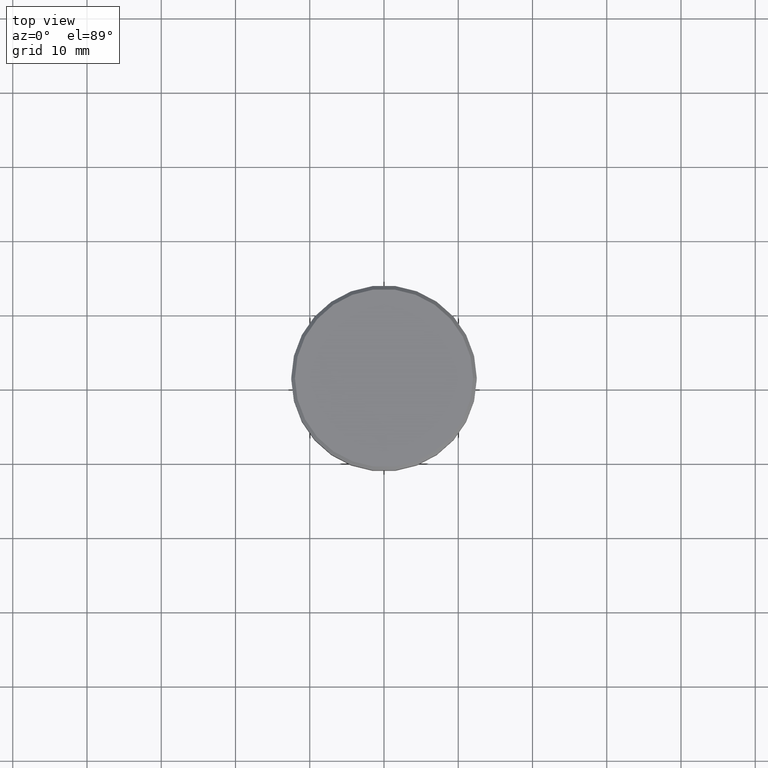
[diagram: clean part render]
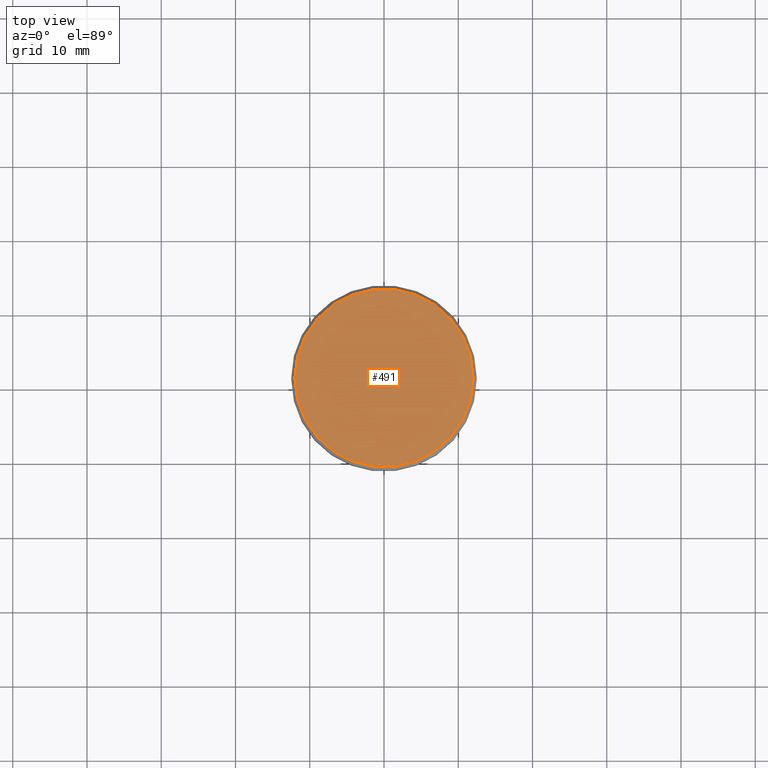
[diagram: same view with one face highlighted and labeled with its STEP entity id]
A machine part, top view. The second image highlights one B-rep face of the part: STEP entity #491.
In plain terms, the highlighted planar face has unit normal (0, -0, 1).
Its self-contained STEP definition (entity closure, byte-faithful):
#221 = EDGE_CURVE ( 'NONE', #1097, #691, #1158, .T. ) ;
#236 = DIRECTION ( 'NONE',  ( 1.000000000000000000, 0.000000000000000000, 0.000000000000000000 ) ) ;
#243 = AXIS2_PLACEMENT_3D ( 'NONE', #434, #344, #1062 ) ;
#266 = DIRECTION ( 'NONE',  ( -0.000000000000000000, -0.000000000000000000, 1.000000000000000000 ) ) ;
#344 = DIRECTION ( 'NONE',  ( -0.000000000000000000, -0.000000000000000000, 1.000000000000000000 ) ) ;
#362 = EDGE_CURVE ( 'NONE', #691, #1097, #577, .T. ) ;
#380 = CARTESIAN_POINT ( 'NONE',  ( 12.00000000000002487, 1.500192328955509115E-15, 0.000000000000000000 ) ) ;
#434 = CARTESIAN_POINT ( 'NONE',  ( 0.000000000000000000, 0.000000000000000000, 0.000000000000000000 ) ) ;
#491 = ADVANCED_FACE ( 'NONE', ( #1071 ), #1063, .T. ) ;
#509 = CARTESIAN_POINT ( 'NONE',  ( 0.000000000000000000, 0.000000000000000000, 0.000000000000000000 ) ) ;
#577 = CIRCLE ( 'NONE', #709, 12.00000000000002487 ) ;
#637 = DIRECTION ( 'NONE',  ( 1.000000000000000000, 0.000000000000000000, 0.000000000000000000 ) ) ;
#650 = EDGE_LOOP ( 'NONE', ( #1142, #775 ) ) ;
#691 = VERTEX_POINT ( 'NONE', #380 ) ;
#709 = AXIS2_PLACEMENT_3D ( 'NONE', #1178, #266, #637 ) ;
#775 = ORIENTED_EDGE ( 'NONE', *, *, #362, .T. ) ;
#1032 = AXIS2_PLACEMENT_3D ( 'NONE', #509, #1164, #236 ) ;
#1062 = DIRECTION ( 'NONE',  ( 1.000000000000000000, 0.000000000000000000, 0.000000000000000000 ) ) ;
#1063 = PLANE ( 'NONE',  #1032 ) ;
#1071 = FACE_OUTER_BOUND ( 'NONE', #650, .T. ) ;
#1072 = CARTESIAN_POINT ( 'NONE',  ( -12.00000000000002487, 0.000000000000000000, 0.000000000000000000 ) ) ;
#1097 = VERTEX_POINT ( 'NONE', #1072 ) ;
#1142 = ORIENTED_EDGE ( 'NONE', *, *, #221, .T. ) ;
#1158 = CIRCLE ( 'NONE', #243, 12.00000000000002487 ) ;
#1164 = DIRECTION ( 'NONE',  ( 0.000000000000000000, -0.000000000000000000, 1.000000000000000000 ) ) ;
#1178 = CARTESIAN_POINT ( 'NONE',  ( 0.000000000000000000, 0.000000000000000000, 0.000000000000000000 ) ) ;